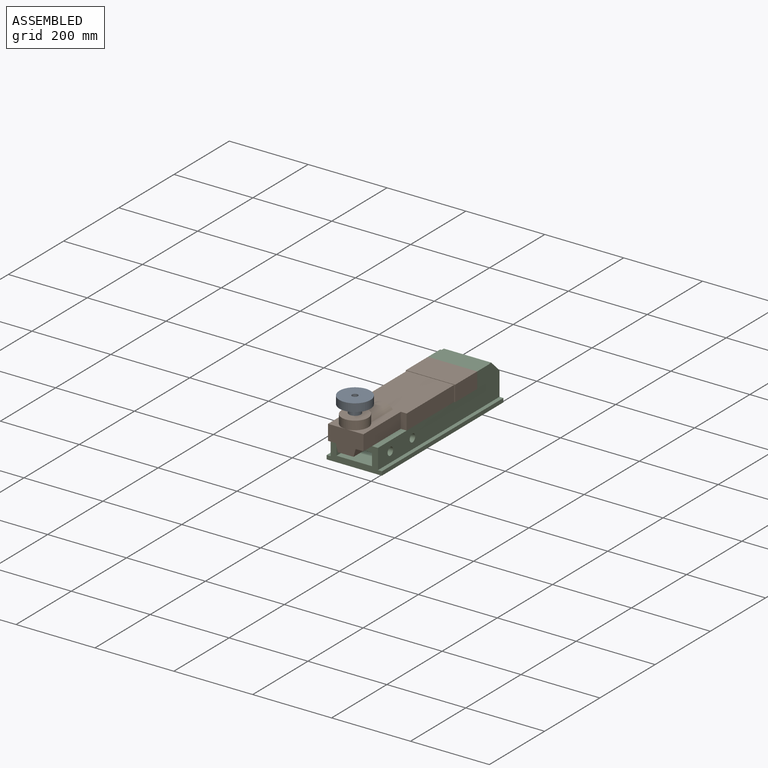
[diagram: assembled view]
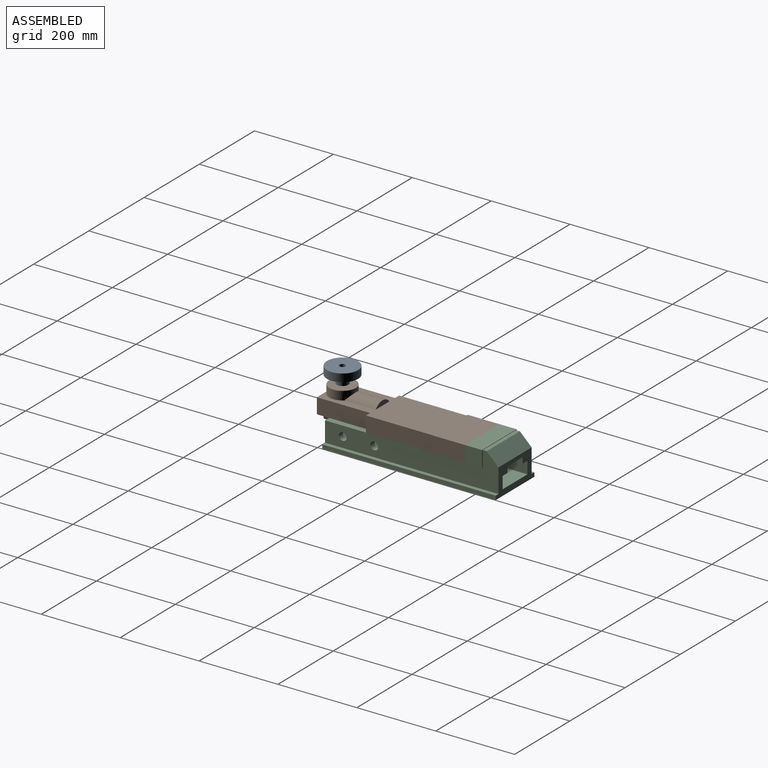
[diagram: assembled view, second angle]
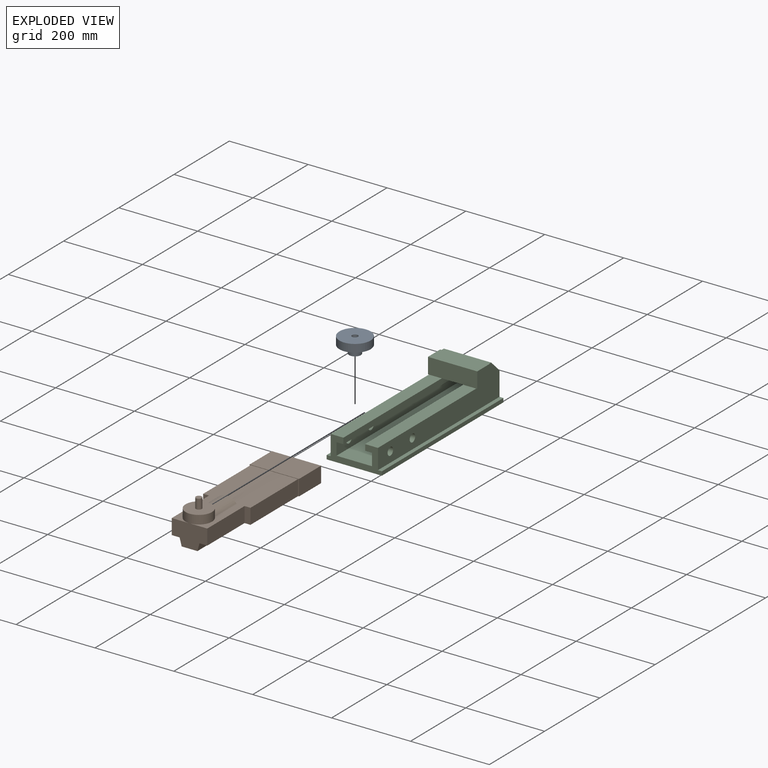
[diagram: exploded view]
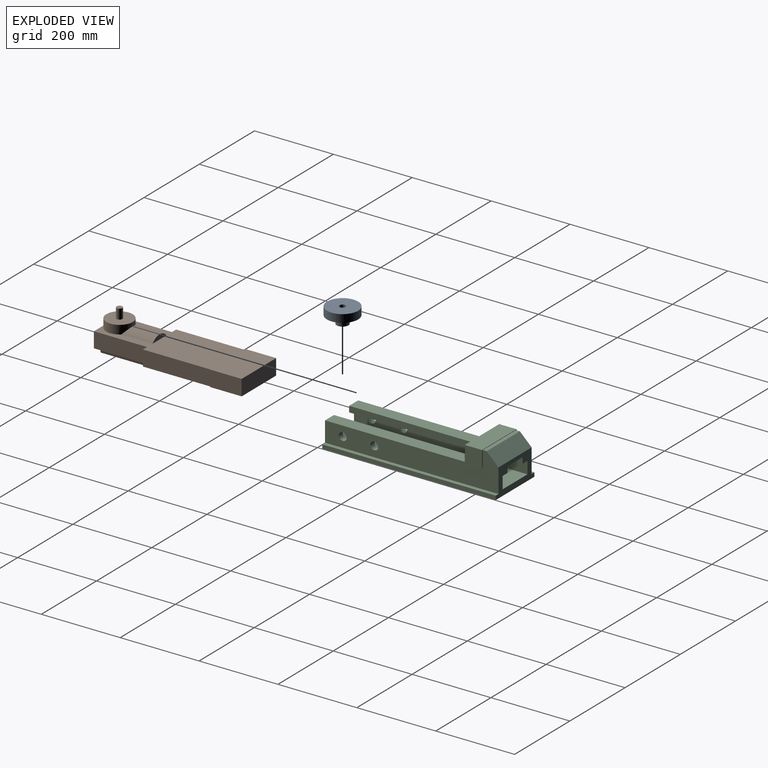
[diagram: exploded view, second angle]
ASSEMBLY  parts=3 mates=2
PART A: 6 faces, bbox 79x79x40 mm
  f0: cylinder r=39.5mm len=79mm, axis (0,0,1), area 4963.7mm2, adj f1,f5
  f1: plane 79x79mm, normal (0,0,1), area 4725mm2, adj f0,f2
  f2: cylinder r=7.5mm len=40mm, axis (0,0,1), area 1885mm2, adj f1,f3
  f3: plane 30x30mm, normal (0,0,-1), area 530.1mm2, adj f2,f4
  f4: cylinder r=15mm len=30mm, axis (0,0,1), area 1885mm2, adj f3,f5
  f5: plane 79x79mm, normal (0,0,-1), area 4194.8mm2, adj f0,f4
PART B: 24 faces, bbox 125x387x105.3 mm
  f0: cylinder r=32.04mm len=79.2mm, axis (0,1,0), area 4122.9mm2, adj f8,f12,f20
  f1: plane 39x15mm, normal (0,-1,0), area 585mm2, adj f3,f8,f10,f17
  f2: plane 125x40mm, normal (0,-1,0), area 320mm2, adj f3,f5,f6,f7,f8,f10,f11
  f3: plane 387x125mm, normal (0,0,-1), area 35992.4mm2, adj f1,f2,f4,f6,f7,f9,f10,f11
  f4: plane 125x40mm, normal (0,1,0), area 5000mm2, adj f3,f5,f6,f7
  f5: plane 125x80mm, normal (0,0,1), area 10000mm2, adj f2,f4,f6,f7
  f6: plane 80x40mm, normal (1,0,0), area 3200mm2, adj f2,f3,f4,f5
  f7: plane 80x40mm, normal (-1,0,0), area 3200mm2, adj f2,f3,f4,f5
  f8: plane 307x120mm, normal (0,0,1), area 25692.3mm2, adj f0,f1,f2,f9,f10,f11,f12,f13
  f9: plane 39x15mm, normal (0,-1,0), area 585mm2, adj f3,f8,f11,f13
  f10: plane 172x39mm, normal (1,0,0), area 6708mm2, adj f1,f2,f3,f8
  f11: plane 172x39mm, normal (-1,0,0), area 6708mm2, adj f2,f3,f8,f9
  f12: plane 50x12mm, normal (0,1,0), area 417.9mm2, adj f0,f8
  f13: plane 135x39mm, normal (-1,0,0), area 5265mm2, adj f3,f8,f9,f18
  f14: plane 135x19.32mm, normal (-0.97,0,-0.26), area 2700mm2, adj f3,f15,f18,f19
  f15: plane 135x40mm, normal (0,0,-1), area 5400mm2, adj f14,f16,f18,f19
  f16: plane 135x19.32mm, normal (0.97,0,-0.26), area 2700mm2, adj f3,f15,f18,f19
  f17: plane 135x39mm, normal (1,0,0), area 5265mm2, adj f1,f3,f8,f18
  f18: plane 90x58.32mm, normal (0,-1,0), area 4382.7mm2, adj f3,f8,f13,f14,f15,f16,f17
  f19: plane 50.35x19.32mm, normal (0,1,0), area 872.7mm2, adj f3,f14,f15,f16
  f20: cylinder r=33.5mm len=67mm, axis (0,0,-1), area 4182.1mm2, adj f0,f8,f21
  f21: plane 67x67mm, normal (0,0,1), area 3348.9mm2, adj f20,f22
  f22: cylinder r=7.5mm len=25mm, axis (0,0,-1), area 1178.1mm2, adj f21,f23
  f23: plane 15x15mm, normal (0,0,1), area 176.7mm2, adj f22
PART C: 32 faces, bbox 140x440x101 mm
  f0: plane 356x32.5mm, normal (0,0,1), area 11570mm2, adj f2,f3,f11,f29
  f1: plane 140x71mm, normal (0,1,0), area 5105mm2, adj f3,f4,f5,f7,f8,f9,f10,f11
  f2: plane 140x61mm, normal (0,-1,0), area 3905mm2, adj f0,f3,f4,f5,f6,f7,f8,f9
  f3: plane 440x90mm, normal (-1,0,0), area 22936.7mm2, adj f0,f1,f2,f9,f20,f21,f23,f24
  f4: plane 440x90mm, normal (1,0,0), area 22936.7mm2, adj f1,f2,f6,f7,f18,f19,f23,f24
  f5: plane 440x140mm, normal (0,0,-1), area 61600mm2, adj f1,f2,f8,f10
  f6: plane 356x32.5mm, normal (0,0,1), area 11570mm2, adj f2,f4,f12,f29
  f7: plane 440x10mm, normal (0,0,1), area 4400mm2, adj f1,f2,f4,f8
  f8: plane 440x10mm, normal (1,0,0), area 4400mm2, adj f1,f2,f5,f7
  f9: plane 440x10mm, normal (0,0,1), area 4400mm2, adj f1,f2,f3,f10
  f10: plane 440x10mm, normal (-1,0,0), area 4400mm2, adj f1,f2,f5,f9
  f11: plane 440x15mm, normal (1,0,0), area 6600mm2, adj f0,f1,f2,f13,f22
  f12: plane 440x15mm, normal (-1,0,0), area 6600mm2, adj f1,f2,f6,f17,f22
  f13: plane 440x17.5mm, normal (0,0,-1), area 7700mm2, adj f1,f2,f11,f14
  f14: plane 440x31mm, normal (1,0,0), area 13011.7mm2, adj f1,f2,f13,f15,f20,f21
  f15: plane 440x90mm, normal (0,0,1), area 39600mm2, adj f1,f2,f14,f16
  f16: plane 440x31mm, normal (-1,0,0), area 13011.7mm2, adj f1,f2,f15,f17,f18,f19
  f17: plane 440x17.5mm, normal (0,0,-1), area 7700mm2, adj f1,f2,f12,f16
  f18: cylinder r=10mm len=20mm, axis (1,0,0), area 942.5mm2, adj f4,f16
  f19: cylinder r=10mm len=20mm, axis (1,0,0), area 942.5mm2, adj f4,f16
  f20: cylinder r=10mm len=20mm, axis (1,0,0), area 942.5mm2, adj f3,f14
  f21: cylinder r=10mm len=20mm, axis (1,0,0), area 942.5mm2, adj f3,f14
  f22: plane 84x55mm, normal (0,0,-1), area 4620mm2, adj f1,f11,f12,f29
  f23: plane 120x30mm, normal (0,0.7,0.72), area 5007mm2, adj f1,f3,f4,f24
  f24: plane 120x10mm, normal (0,0,1), area 1200mm2, adj f3,f4,f23,f26
  f25: plane 44x2.5mm, normal (0,0,-1), area 110mm2, adj f3,f26,f29,f31
  f26: plane 125x40mm, normal (0,1,0), area 320mm2, adj f3,f4,f24,f25,f27,f28,f30,f31
  f27: plane 44x2.5mm, normal (0,0,-1), area 110mm2, adj f4,f26,f29,f30
  f28: plane 125x44mm, normal (0,0,1), area 5500mm2, adj f26,f29,f30,f31
  f29: plane 125x40mm, normal (0,-1,0), area 5000mm2, adj f0,f6,f22,f25,f27,f28,f30,f31
  f30: plane 44x40mm, normal (1,0,0), area 1760mm2, adj f26,f27,f28,f29
  f31: plane 44x40mm, normal (-1,0,0), area 1760mm2, adj f25,f26,f28,f29
PLACE A t=(-57.36,373.98,-82.85)mm
PLACE B t=(-57.36,373.98,-83.35)mm
PLACE C t=(-57.36,260.98,-83.35)mm fixed
MATE slider C.f29 <-> B.f4  axis (0,-1,0) through (-57.36,176.98,-2.35)mm
MATE fastened A.f0 <-> B.f20  axis (0,0,1) through (-57.36,-176.52,51.15)mm
